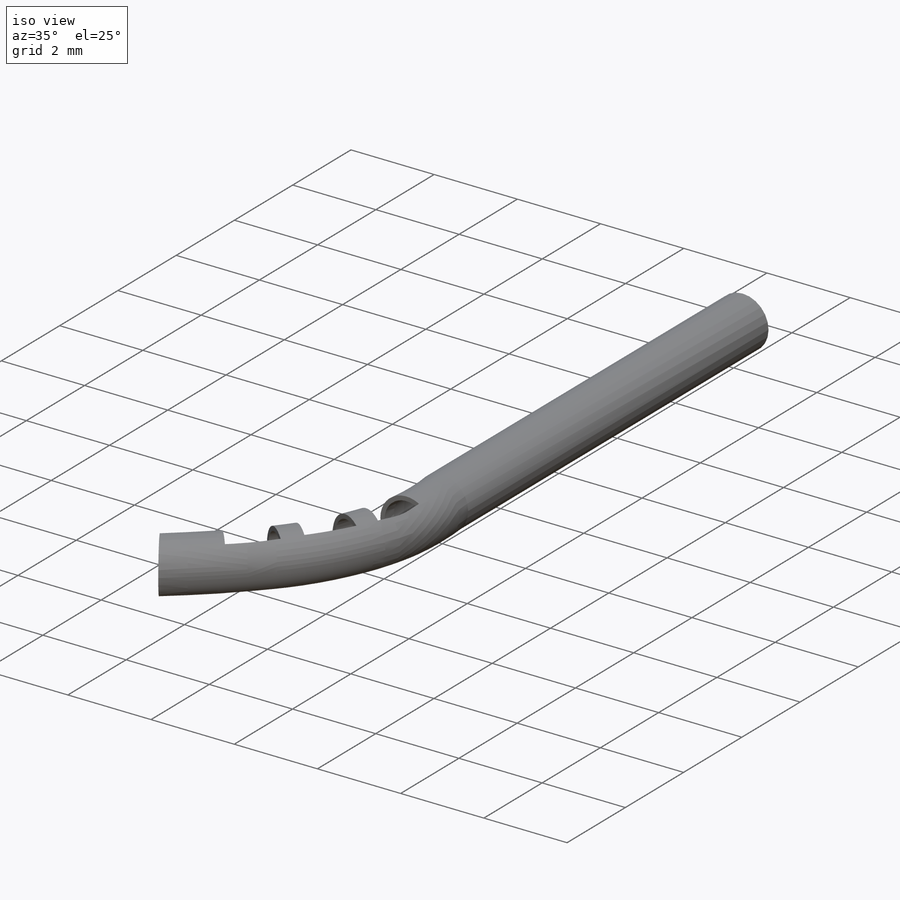
[diagram: iso view]
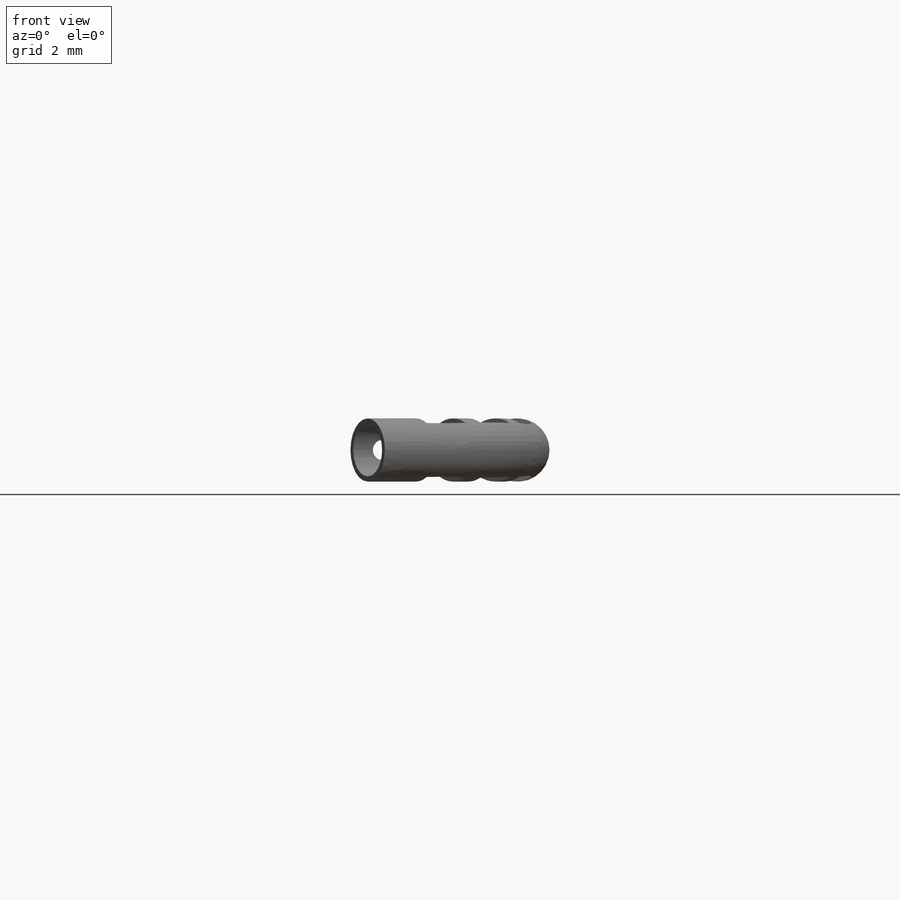
[diagram: front view]
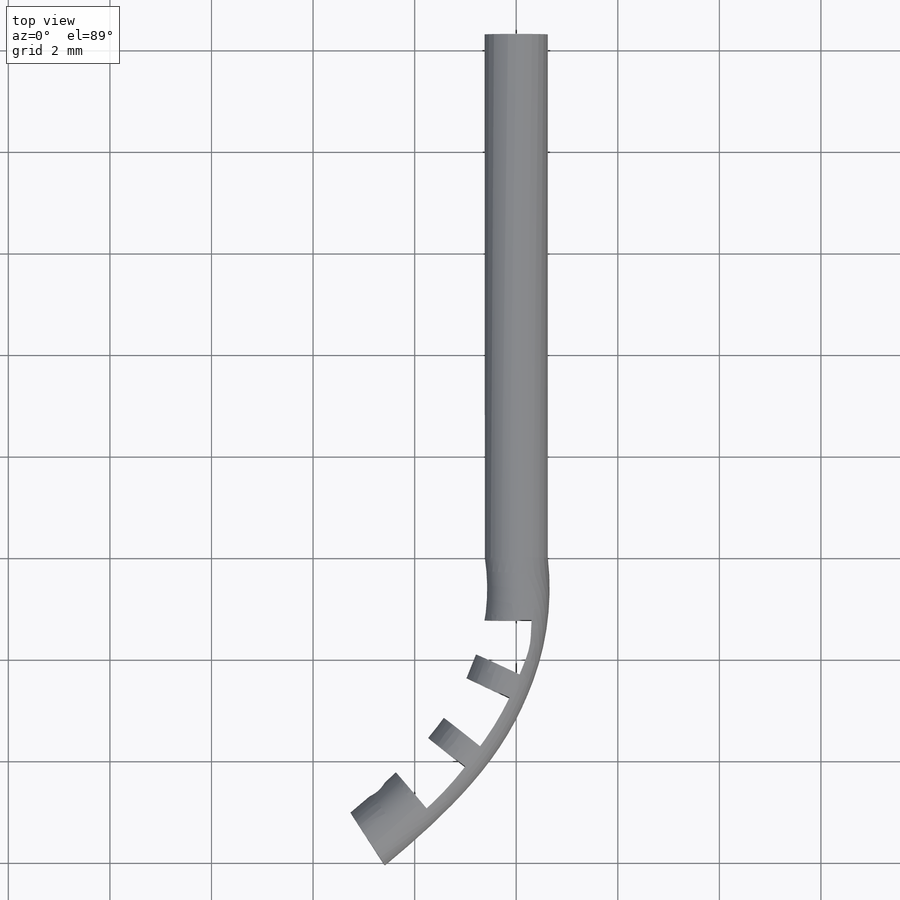
[diagram: top view]
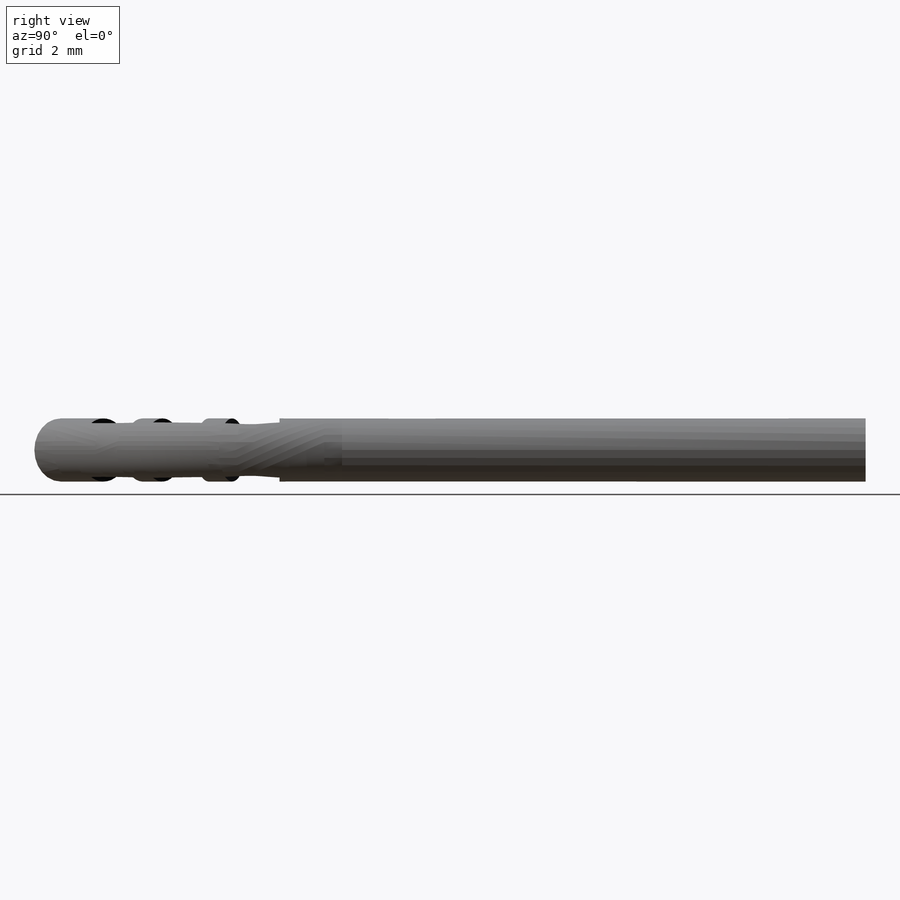
[diagram: right view]
SOLIDWORKS PART (.sldprt)
format: sldprt  version: not decoded by parser v0  size: 355,328 bytes
history: native  units: mm
features: sketch x7, cut_extrude x2, material x1, sweep x1, plane x1, extrude x1 (+13 scaffold rows collapsed)
feature tree (26):
  scaffold x13  (default folders/planes/origin — collapsed)
  material  "Material <not specified>"
  sketch  "Sketch1"  dims[D1=1.244mm D2=~1.041228mm]
  sketch  "Sketch2"  dims[D1=~1.21673mm]
  sketch  "Sketch5"  dims[D1=0.0mm]
  sweep  "Sweep2"
  sketch  "Sketch7"  dims[D2=~0.132355mm D1=0.0mm]
  plane  "Plane1"
  cut_extrude  "Cut-Extrude1"  [1 undecoded]
  sketch  "Sketch8"  dims[D1=0.4mm D2=0.5mm]
  cut_extrude  "Cut-Extrude2"  Depth=10mm
  sketch  "Sketch9"  dims[D2=6.3mm D1=0.89mm]
  sketch  "Sketch10"
  extrude  "Boss-Extrude1"  Depth=10.31mm
decode coverage: 8 of 11 modeling features carry decoded parameters
note: ~ marks probable driven/reference dimensions
note: 1 parameter value undecoded
note: suppression state not decoded; provenance and decode notes live in map.json
